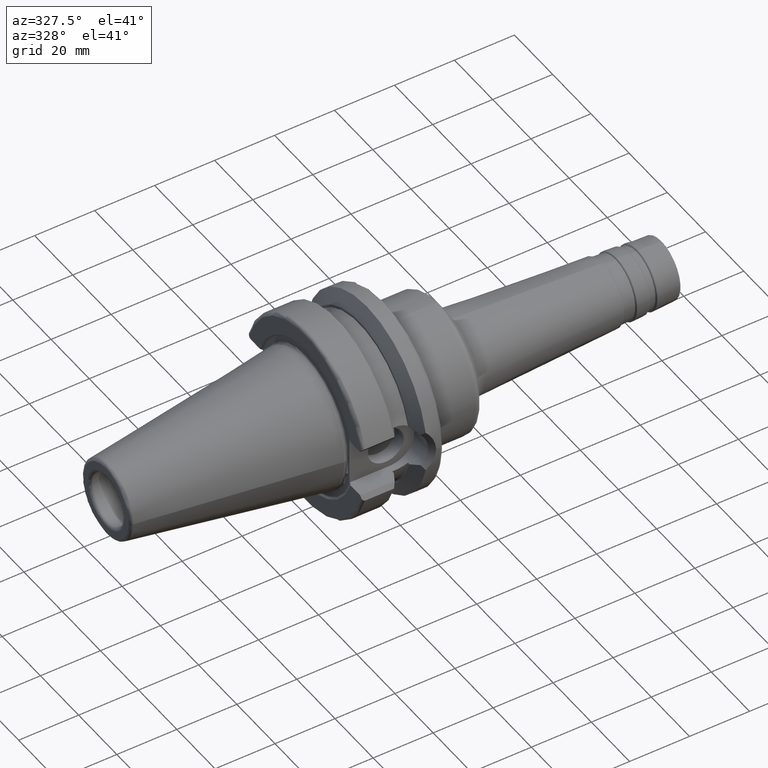
[diagram: clean part render]
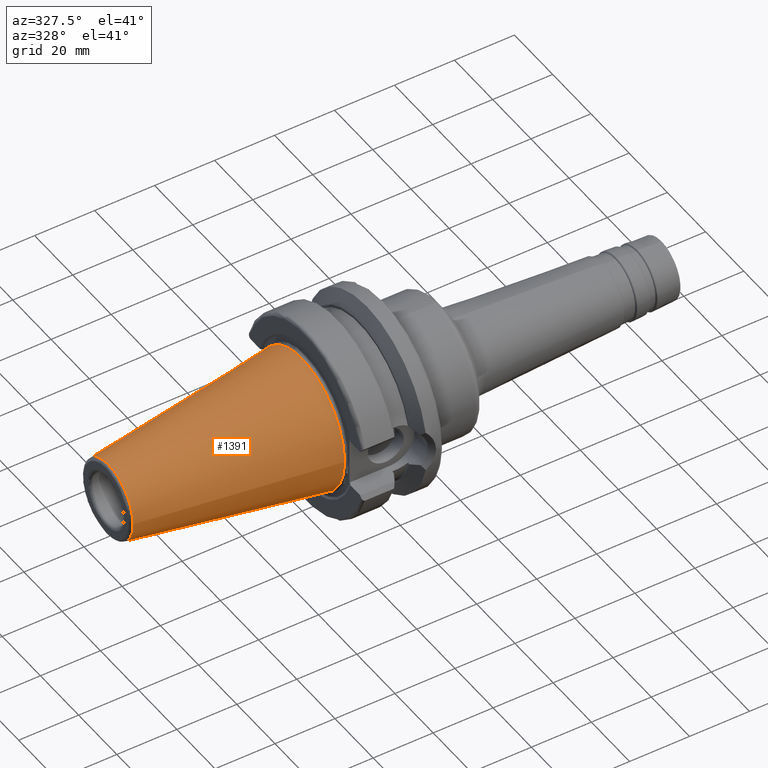
[diagram: same view with one face highlighted and labeled with its STEP entity id]
A machine part, auxiliary view. The second image highlights one B-rep face of the part: STEP entity #1391.
In plain terms, the highlighted conical surface has half-angle 8.297 deg.
Its self-contained STEP definition (entity closure, byte-faithful):
#77=CONICAL_SURFACE('',#1590,17.5186442890469,0.144812498238939);
#202=FACE_OUTER_BOUND('',#295,.T.);
#295=EDGE_LOOP('',(#1254,#1255,#1256,#1257,#1258));
#372=LINE('',#2698,#445);
#445=VECTOR('',#2015,17.5186442890469);
#539=CIRCLE('',#1587,12.8122885780937);
#540=CIRCLE('',#1588,12.8122885780937);
#542=CIRCLE('',#1591,22.225);
#668=VERTEX_POINT('',#2690);
#669=VERTEX_POINT('',#2691);
#670=VERTEX_POINT('',#2696);
#865=EDGE_CURVE('',#668,#669,#539,.T.);
#866=EDGE_CURVE('',#669,#668,#540,.T.);
#868=EDGE_CURVE('',#670,#670,#542,.T.);
#869=EDGE_CURVE('',#670,#668,#372,.T.);
#1254=ORIENTED_EDGE('',*,*,#868,.F.);
#1255=ORIENTED_EDGE('',*,*,#869,.T.);
#1256=ORIENTED_EDGE('',*,*,#865,.T.);
#1257=ORIENTED_EDGE('',*,*,#866,.T.);
#1258=ORIENTED_EDGE('',*,*,#869,.F.);
#1391=ADVANCED_FACE('',(#202),#77,.T.);
#1587=AXIS2_PLACEMENT_3D('',#2692,#2005,#2006);
#1588=AXIS2_PLACEMENT_3D('',#2693,#2007,#2008);
#1590=AXIS2_PLACEMENT_3D('',#2695,#2011,#2012);
#1591=AXIS2_PLACEMENT_3D('',#2697,#2013,#2014);
#2005=DIRECTION('center_axis',(1.,0.,0.));
#2006=DIRECTION('ref_axis',(0.,0.,-1.));
#2007=DIRECTION('center_axis',(1.,0.,0.));
#2008=DIRECTION('ref_axis',(0.,0.,-1.));
#2011=DIRECTION('center_axis',(1.,0.,0.));
#2012=DIRECTION('ref_axis',(0.,1.,0.));
#2013=DIRECTION('center_axis',(1.,0.,0.));
#2014=DIRECTION('ref_axis',(0.,0.,-1.));
#2015=DIRECTION('',(-0.989532981063282,0.144306893071729,1.76724974695192E-17));
#2690=CARTESIAN_POINT('',(-64.5443068930717,-12.8122885780937,-1.56905281969147E-15));
#2691=CARTESIAN_POINT('',(-64.5443068930717,-1.56905281969147E-15,12.8122885780937));
#2692=CARTESIAN_POINT('Origin',(-64.5443068930717,0.,0.));
#2693=CARTESIAN_POINT('Origin',(-64.5443068930717,0.,0.));
#2695=CARTESIAN_POINT('Origin',(-32.2721534465359,0.,0.));
#2696=CARTESIAN_POINT('',(4.44089209850063E-15,-22.225,-2.72177751110499E-15));
#2697=CARTESIAN_POINT('Origin',(0.,0.,0.));
#2698=CARTESIAN_POINT('',(-32.2721534465359,-17.5186442890469,-2.14541516539823E-15));